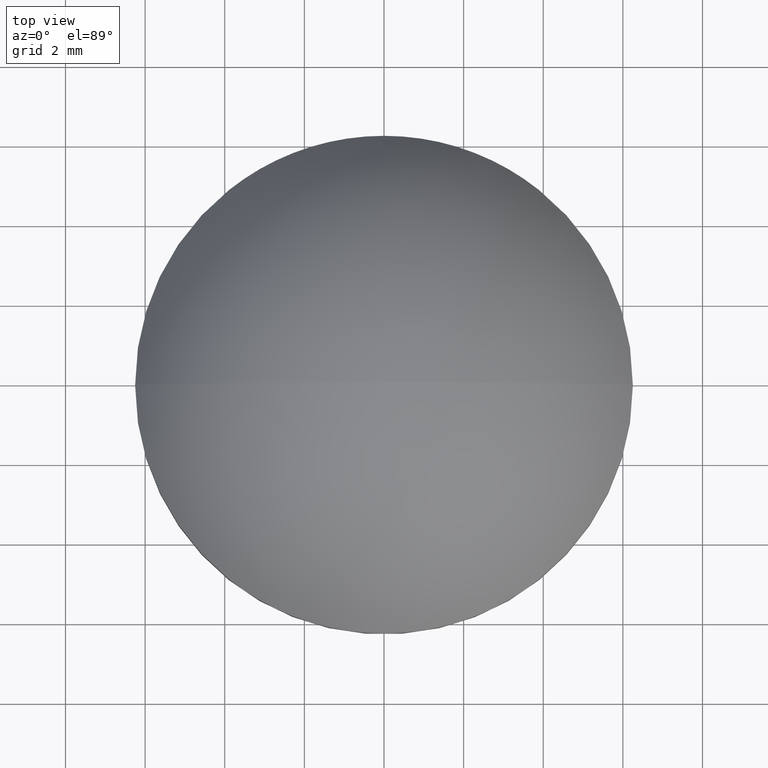
[diagram: clean part render]
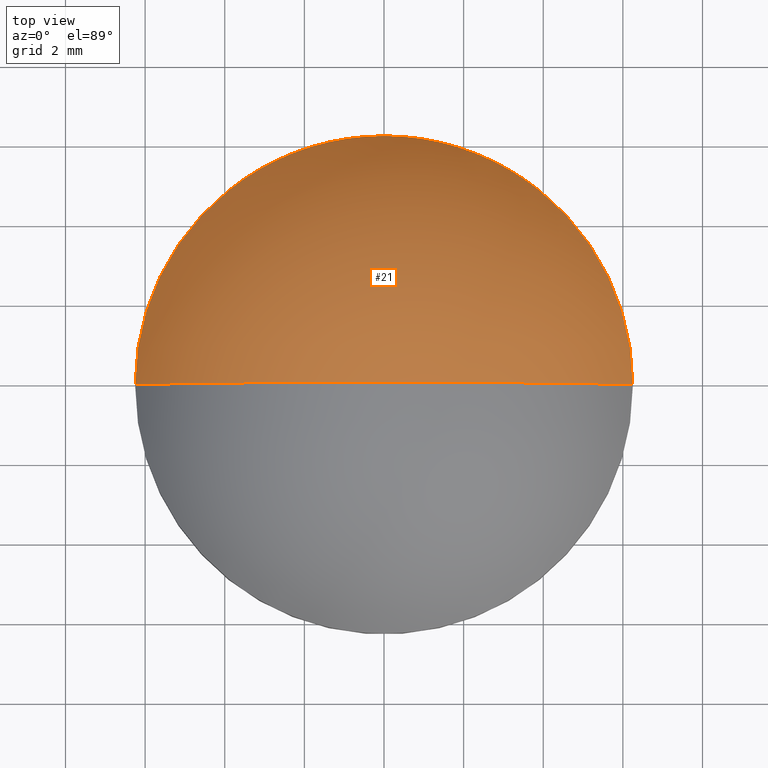
[diagram: same view with one face highlighted and labeled with its STEP entity id]
A machine part, top view. The second image highlights one B-rep face of the part: STEP entity #21.
In plain terms, the highlighted spherical surface has radius 7.4445 mm.
Its self-contained STEP definition (entity closure, byte-faithful):
#6 = EDGE_CURVE ( 'NONE', #61, #165, #167, .T. ) ;
#9 = ORIENTED_EDGE ( 'NONE', *, *, #182, .T. ) ;
#16 = DIRECTION ( 'NONE',  ( -1.224646799147353207E-16, -1.000000000000000000, -0.000000000000000000 ) ) ;
#19 = CARTESIAN_POINT ( 'NONE',  ( -4.558432543370360034E-16, 0.000000000000000000, 5.000000000000000000 ) ) ;
#20 = DIRECTION ( 'NONE',  ( 0.000000000000000000, 0.000000000000000000, 1.000000000000000000 ) ) ;
#21 = ADVANCED_FACE ( 'NONE', ( #111 ), #181, .T. ) ;
#32 = DIRECTION ( 'NONE',  ( 0.000000000000000000, 1.000000000000000000, 0.000000000000000000 ) ) ;
#33 = DIRECTION ( 'NONE',  ( 0.000000000000000000, 0.000000000000000000, 1.000000000000000000 ) ) ;
#61 = VERTEX_POINT ( 'NONE', #94 ) ;
#70 = DIRECTION ( 'NONE',  ( 1.000000000000000000, -1.224646799147353207E-16, 0.000000000000000000 ) ) ;
#75 = ORIENTED_EDGE ( 'NONE', *, *, #6, .F. ) ;
#77 = AXIS2_PLACEMENT_3D ( 'NONE', #84, #33, #155 ) ;
#83 = CARTESIAN_POINT ( 'NONE',  ( -6.250000000000000000, 0.000000000000000000, 1.600000000000000089 ) ) ;
#84 = CARTESIAN_POINT ( 'NONE',  ( 0.000000000000000000, 0.000000000000000000, 1.600000000000000089 ) ) ;
#93 = CIRCLE ( 'NONE', #214, 7.444485294117647811 ) ;
#94 = CARTESIAN_POINT ( 'NONE',  ( 6.250000000000000000, 7.654042494670957606E-16, 1.600000000000000089 ) ) ;
#111 = FACE_OUTER_BOUND ( 'NONE', #152, .T. ) ;
#130 = CARTESIAN_POINT ( 'NONE',  ( 0.000000000000000000, 0.000000000000000000, -2.444485294117647367 ) ) ;
#133 = CARTESIAN_POINT ( 'NONE',  ( 0.000000000000000000, 0.000000000000000000, -2.444485294117647367 ) ) ;
#137 = CARTESIAN_POINT ( 'NONE',  ( 0.000000000000000000, 0.000000000000000000, -2.444485294117647367 ) ) ;
#152 = EDGE_LOOP ( 'NONE', ( #75, #9, #160 ) ) ;
#155 = DIRECTION ( 'NONE',  ( 1.000000000000000000, 0.000000000000000000, 0.000000000000000000 ) ) ;
#160 = ORIENTED_EDGE ( 'NONE', *, *, #186, .T. ) ;
#165 = VERTEX_POINT ( 'NONE', #19 ) ;
#167 = CIRCLE ( 'NONE', #168, 7.444485294117647811 ) ;
#168 = AXIS2_PLACEMENT_3D ( 'NONE', #133, #16, #70 ) ;
#176 = CIRCLE ( 'NONE', #77, 6.250000000000000000 ) ;
#181 = SPHERICAL_SURFACE ( 'NONE', #200, 7.444485294117647811 ) ;
#182 = EDGE_CURVE ( 'NONE', #61, #209, #176, .T. ) ;
#186 = EDGE_CURVE ( 'NONE', #209, #165, #93, .T. ) ;
#195 = DIRECTION ( 'NONE',  ( -1.000000000000000000, 0.000000000000000000, 0.000000000000000000 ) ) ;
#198 = DIRECTION ( 'NONE',  ( -0.000000000000000000, -1.000000000000000000, 0.000000000000000000 ) ) ;
#200 = AXIS2_PLACEMENT_3D ( 'NONE', #130, #198, #195 ) ;
#209 = VERTEX_POINT ( 'NONE', #83 ) ;
#214 = AXIS2_PLACEMENT_3D ( 'NONE', #137, #32, #20 ) ;